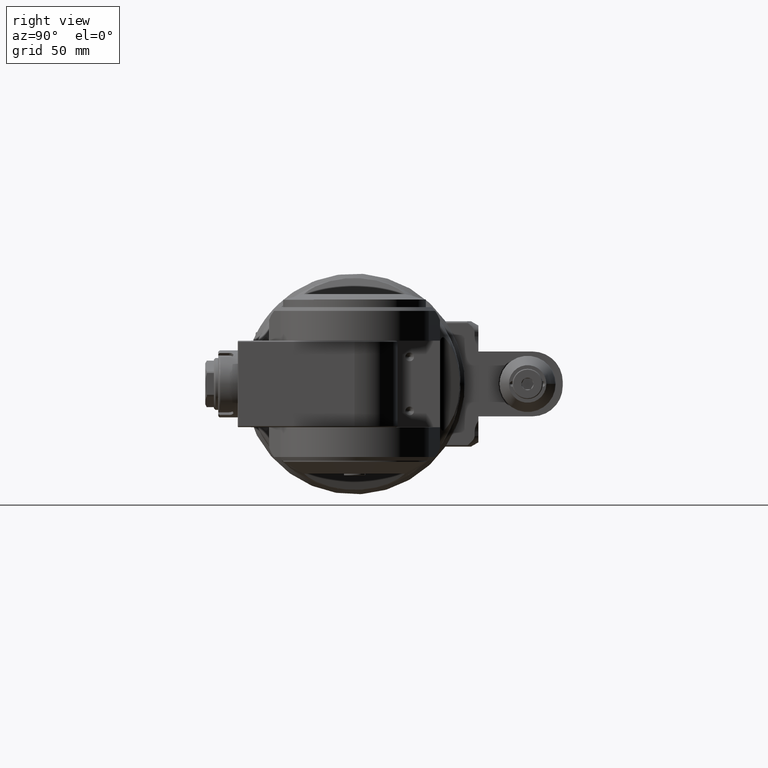
[diagram: clean part render]
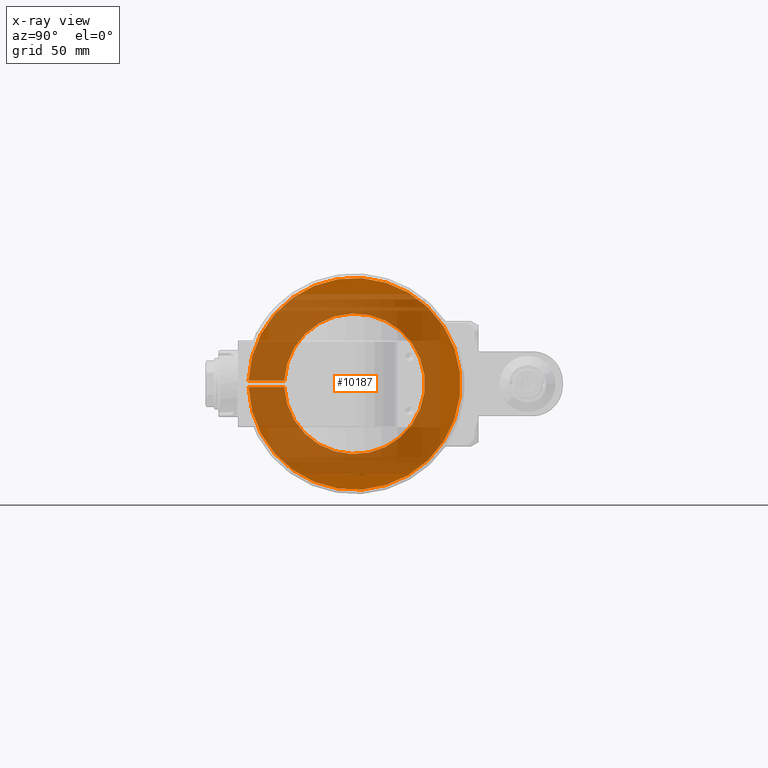
[diagram: x-ray — body ghosted, one internal face saturated and labeled with its STEP entity id]
A machine part, right view, then the same camera in x-ray: the body is ghosted and one INTERNAL B-rep face — a face not visible from any outside direction — is saturated and labeled: STEP entity #10187.
In plain terms, the highlighted planar face has unit normal (1, 0, 0).
Its self-contained STEP definition (entity closure, byte-faithful):
#420=PLANE('',#10886);
#872=FACE_OUTER_BOUND('',#1504,.T.);
#1504=EDGE_LOOP('',(#6964,#6965,#6966,#6967));
#2229=CIRCLE('',#10882,49.);
#2232=CIRCLE('',#10887,32.5);
#2823=LINE('',#15139,#3566);
#2828=LINE('',#15173,#3571);
#3566=VECTOR('',#12040,16.51166927349);
#3571=VECTOR('',#12051,16.51166927349);
#4323=VERTEX_POINT('',#15128);
#4324=VERTEX_POINT('',#15132);
#4325=VERTEX_POINT('',#15138);
#4333=VERTEX_POINT('',#15172);
#5372=EDGE_CURVE('',#4324,#4323,#2229,.T.);
#5374=EDGE_CURVE('',#4325,#4324,#2823,.T.);
#5383=EDGE_CURVE('',#4323,#4333,#2828,.T.);
#5384=EDGE_CURVE('',#4333,#4325,#2232,.T.);
#6964=ORIENTED_EDGE('',*,*,#5372,.T.);
#6965=ORIENTED_EDGE('',*,*,#5383,.T.);
#6966=ORIENTED_EDGE('',*,*,#5384,.T.);
#6967=ORIENTED_EDGE('',*,*,#5374,.T.);
#10187=ADVANCED_FACE('',(#872),#420,.T.);
#10882=AXIS2_PLACEMENT_3D('',#15133,#12036,#12037);
#10886=AXIS2_PLACEMENT_3D('',#15171,#12049,#12050);
#10887=AXIS2_PLACEMENT_3D('',#15174,#12052,#12053);
#12036=DIRECTION('center_axis',(1.,0.,0.));
#12037=DIRECTION('ref_axis',(0.,1.,0.));
#12040=DIRECTION('',(0.,-1.,0.));
#12049=DIRECTION('center_axis',(1.,0.,0.));
#12050=DIRECTION('ref_axis',(0.,-1.,0.));
#12051=DIRECTION('',(0.,1.,0.));
#12052=DIRECTION('center_axis',(-1.,0.,0.));
#12053=DIRECTION('ref_axis',(0.,-0.998934343430642,0.0461538461538519));
#15128=CARTESIAN_POINT('',(-12.,-48.97703543499,1.5));
#15132=CARTESIAN_POINT('',(-12.,-48.97703543499,-1.5));
#15133=CARTESIAN_POINT('Origin',(-12.,0.,0.));
#15138=CARTESIAN_POINT('',(-12.,-32.4653661615,-1.5));
#15139=CARTESIAN_POINT('',(-12.,-32.4653661615,-1.5));
#15171=CARTESIAN_POINT('Origin',(-12.,-49.13074005203,0.));
#15172=CARTESIAN_POINT('',(-12.,-32.4653661615,1.5));
#15173=CARTESIAN_POINT('',(-12.,-48.97703543499,1.5));
#15174=CARTESIAN_POINT('Origin',(-12.,0.,0.));